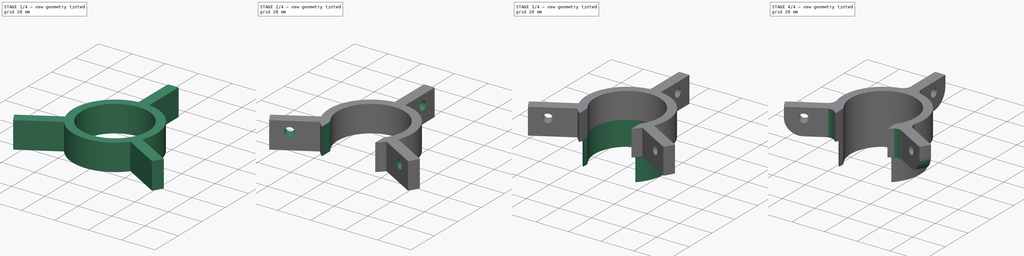
[diagram: build sequence overview — one tinted view per stage of 4, left to right]
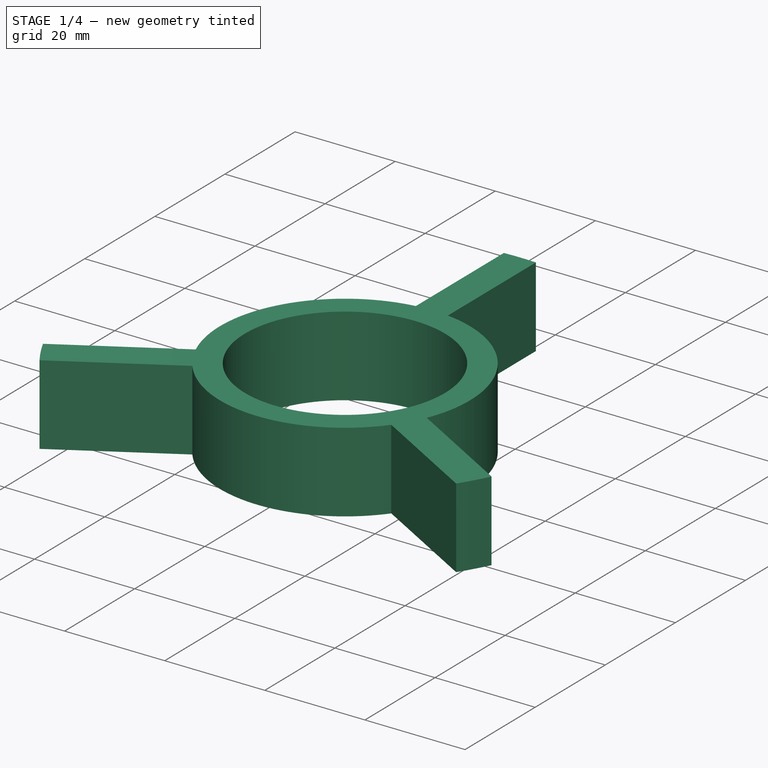
[diagram: stage 1 of 4 — iso view after this stage's code; geometry added in this stage tinted green]
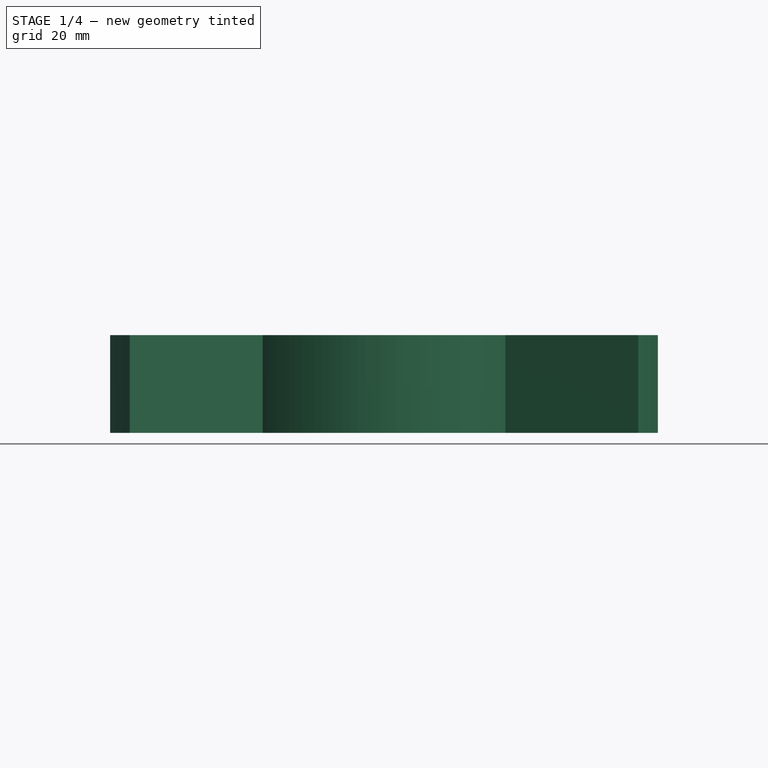
[diagram: stage 1 of 4 — front view after this stage's code; geometry added in this stage tinted green]
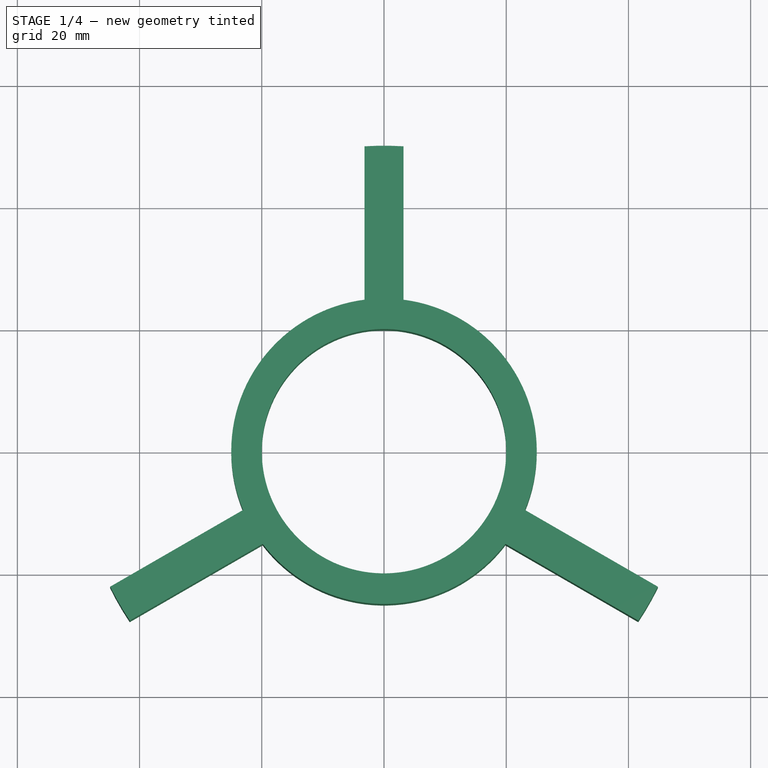
[diagram: stage 1 of 4 — top view after this stage's code; geometry added in this stage tinted green]
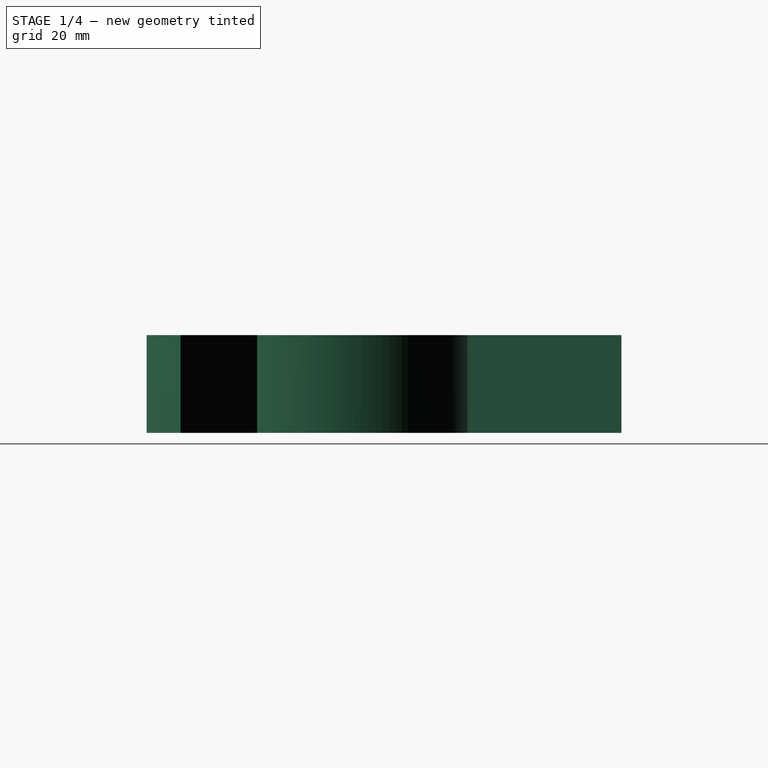
[diagram: stage 1 of 4 — right view after this stage's code; geometry added in this stage tinted green]
FCSTD DOCUMENT  (FreeCAD 0.18R16117 (Git))
Label: lnb_holder_40mm_host_clamp
License: All rights reserved
LicenseURL: http://en.wikipedia.org/wiki/All_rights_reserved
objects: Sketcher::SketchObject×5, PartDesign::Fillet×4, PartDesign::Pocket×3, PartDesign::Pad×2, PartDesign::PolarPattern×2, PartDesign::Body×1, App::Part×1
note: 22 computed .brp shape members not serialized (recipe doc carries the construction recipe); baked Part::Feature solids carry a one-line shape summary decoded from their .brp

FEATURE [Sketcher::SketchObject] Sketch
  MapMode = 5
  Support = -> [XY_Plane001]
  expr: Constraints[3] = Constraints.inner_dia + 60mm
  sketch-geometry (2):
    g0: Circle CenterX=0 CenterY=0 CenterZ=0 NormalX=0 NormalY=0 NormalZ=1 AngleXU=0 Radius=20
    g1: Circle CenterX=0 CenterY=0 CenterZ=0 NormalX=0 NormalY=0 NormalZ=1 AngleXU=0 Radius=50
  constraints (4):
    c: Coincident(g0,g-1)
    c: Coincident(g1,g-1)
    c: Diameter(g0) = 40  'inner_dia'
    c: Diameter(g1) = 100
FEATURE [PartDesign::Pad] Pad
  Length = 16
  Length2 = 100
  Profile = -> Sketch
  Type = 0
FEATURE [Sketcher::SketchObject] Sketch001
  ExternalGeometry = -> [Pad]
  MapMode = 5
  Placement = pos=(0,0,16) rot=(0,0,1;0rad)
  Support = -> [Pad]
  expr: Constraints[9] = Sketch.Constraints.inner_dia / 2 + 5mm
  sketch-geometry (5):
    g0: ArcOfCircle CenterX=0 CenterY=0 CenterZ=0 NormalX=0 NormalY=0 NormalZ=1 AngleXU=0 Radius=25 StartAngle=5.88794 EndAngle=7.72563
    g1: ArcOfCircle CenterX=0 CenterY=0 CenterZ=0 NormalX=0 NormalY=0 NormalZ=1 AngleXU=0 Radius=55.9711 StartAngle=5.81679 EndAngle=7.79678
    g2: LineSegment StartX=3.2 StartY=55.8795 StartZ=0 EndX=3.2 EndY=24.7944 EndZ=0
    g3: LineSegment StartX=23.0725 StartY=-9.6259 StartZ=0 EndX=49.9931 EndY=-25.1685 EndZ=0
    g4: LineSegment [constr] StartX=0 StartY=0 StartZ=0 EndX=53.7237 EndY=-31.0174 EndZ=0
  constraints (13):
    c: Coincident(g0,g-1)
    c: Coincident(g1,g0)
    c: Coincident(g2,g1)
    c: Coincident(g2,g0)
    c: Coincident(g3,g0)
    c: Coincident(g3,g1)
    c: Angle(g3,g2) = 2.0944
    c: Equal(g3,g2)
    c: Vertical(g2)
    c: Distance(g0,g0) = 25
    c: Coincident(g4,g0)
    c: Angle(g4,g-2) = 2.0944
    c: Distance(g1,g4) = 3.2
FEATURE [PartDesign::Pocket] Pocket
  BaseFeature = -> Pad
  Length = 5
  Length2 = 100
  Profile = -> Sketch001
  Type = 1
FEATURE [PartDesign::PolarPattern] PolarPattern
  Angle = 360
  Axis = -> Sketch001 [N_Axis]
  BaseFeature = -> Pocket
  Occurrences = 3
  Originals = -> [Pocket]
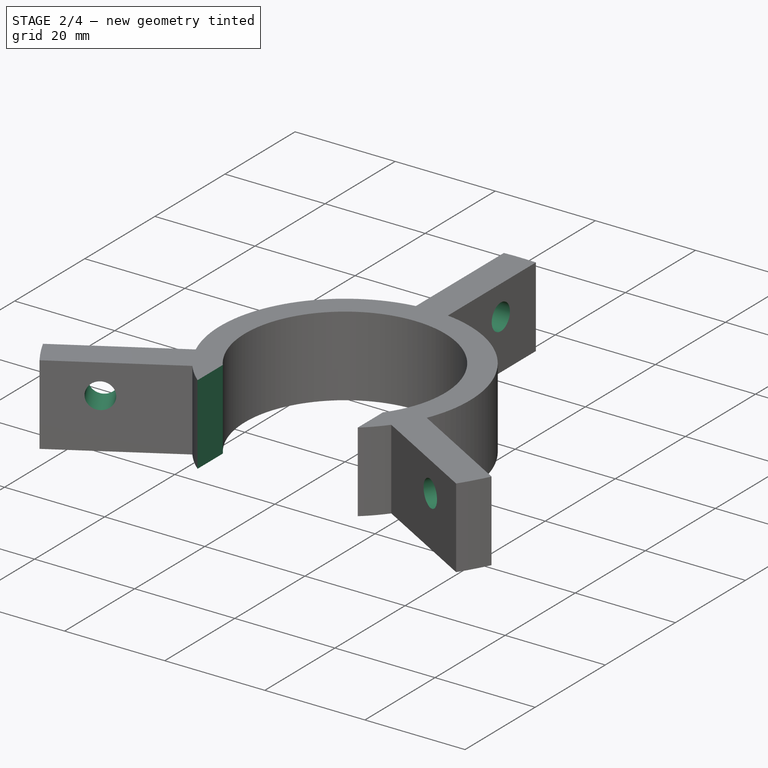
[diagram: stage 2 of 4 — iso view after this stage's code; geometry added in this stage tinted green]
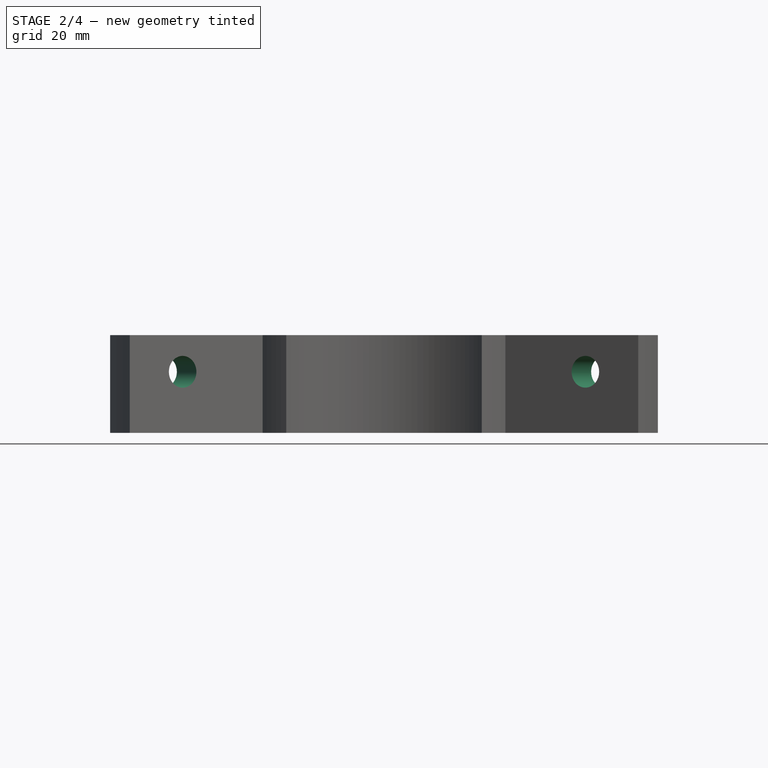
[diagram: stage 2 of 4 — front view after this stage's code; geometry added in this stage tinted green]
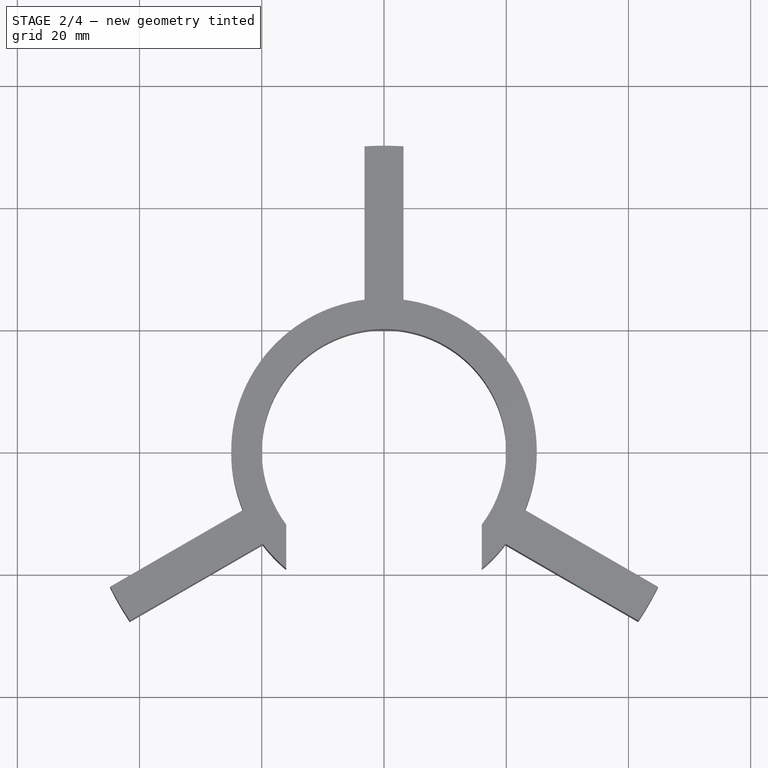
[diagram: stage 2 of 4 — top view after this stage's code; geometry added in this stage tinted green]
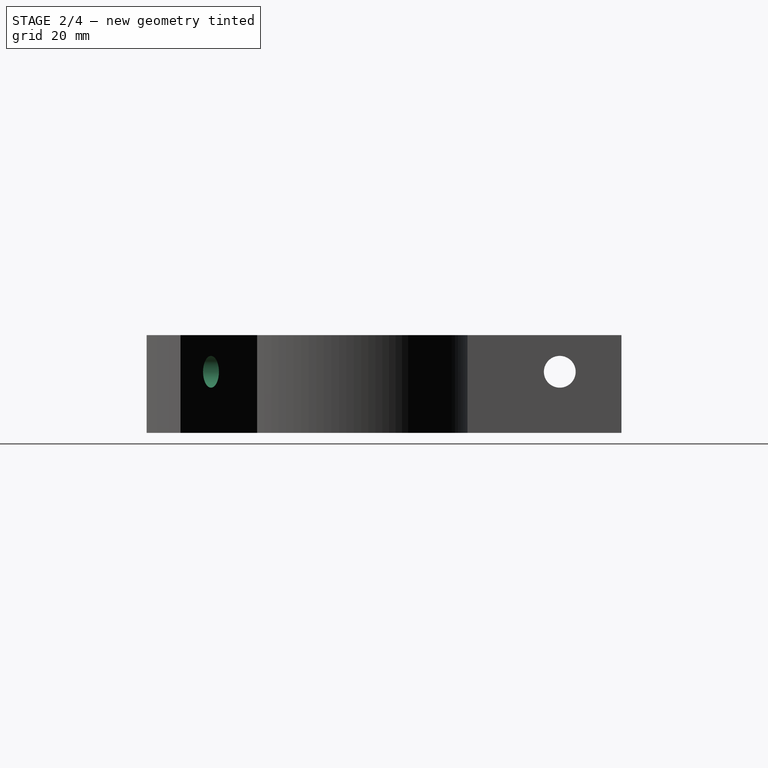
[diagram: stage 2 of 4 — right view after this stage's code; geometry added in this stage tinted green]
FEATURE [Sketcher::SketchObject] Sketch002
  MapMode = 5
  Placement = pos=(0,0,16) rot=(0,0,1;0rad)
  Support = -> [PolarPattern]
  sketch-geometry (5):
    g0: LineSegment StartX=-16 StartY=-8.03614 StartZ=0 EndX=16 EndY=-8.03614 EndZ=0
    g1: LineSegment StartX=16 StartY=-8.03614 StartZ=0 EndX=16 EndY=-34.8485 EndZ=0
    g2: LineSegment StartX=16 StartY=-34.8485 StartZ=0 EndX=-16 EndY=-34.8485 EndZ=0
    g3: LineSegment StartX=-16 StartY=-34.8485 StartZ=0 EndX=-16 EndY=-8.03614 EndZ=0
    g4: GeomPoint X=0 Y=-8.03614 Z=0
  constraints (11):
    c: Coincident(g0,g1)
    c: Coincident(g1,g2)
    c: Coincident(g2,g3)
    c: Coincident(g3,g0)
    c: Horizontal(g0)
    c: Horizontal(g2)
    c: Vertical(g1)
    c: Vertical(g3)
    c: Symmetric(g0,g0,g4)
    c: PointOnObject(g4,g-2)
    c: DistanceX(g2,g2) = 32
FEATURE [PartDesign::Pocket] Pocket001
  BaseFeature = -> PolarPattern
  Length = 5
  Length2 = 100
  Profile = -> Sketch002
  Type = 1
FEATURE [Sketcher::SketchObject] Sketch003
  ExternalGeometry = -> [Pocket001]
  MapMode = 5
  Placement = pos=(3.2,0,0) rot=(0.57735,0.57735,0.57735;2.0944rad)
  Support = -> [Pocket001]
  sketch-geometry (1):
    g0: Circle CenterX=39.8975 CenterY=10 CenterZ=0 NormalX=0 NormalY=0 NormalZ=1 AngleXU=0 Radius=2.6
  constraints (2):
    c: Diameter(g0) = 5.2
    c: DistanceX(g0,g-3) = 10
FEATURE [PartDesign::Pocket] Pocket002
  BaseFeature = -> Pocket001
  Length = 5
  Length2 = 100
  Profile = -> Sketch003
  Type = 1
FEATURE [PartDesign::PolarPattern] PolarPattern001
  Angle = 360
  Axis = -> Z_Axis001
  BaseFeature = -> Pocket002
  Occurrences = 3
  Originals = -> [Pocket002]
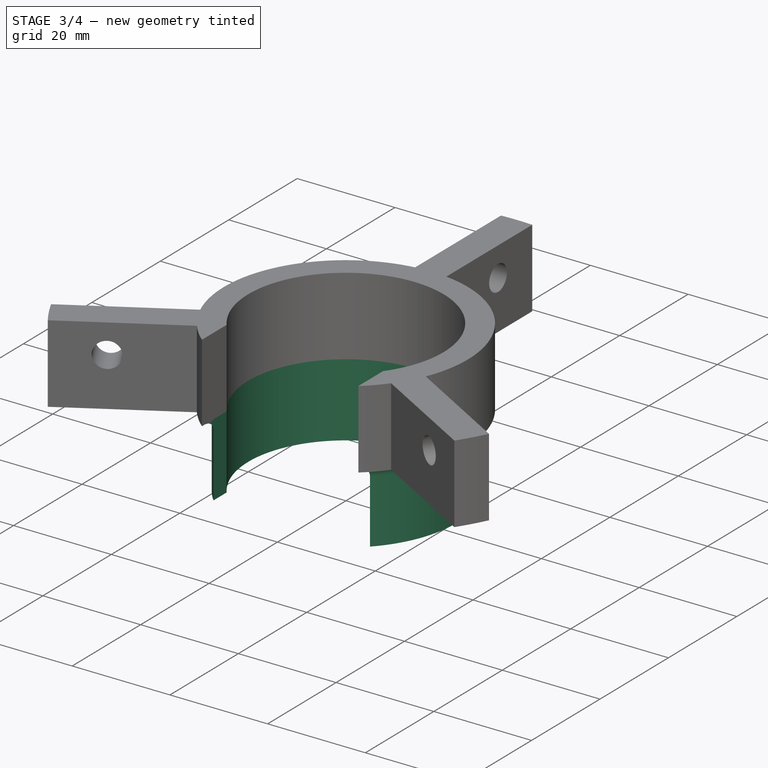
[diagram: stage 3 of 4 — iso view after this stage's code; geometry added in this stage tinted green]
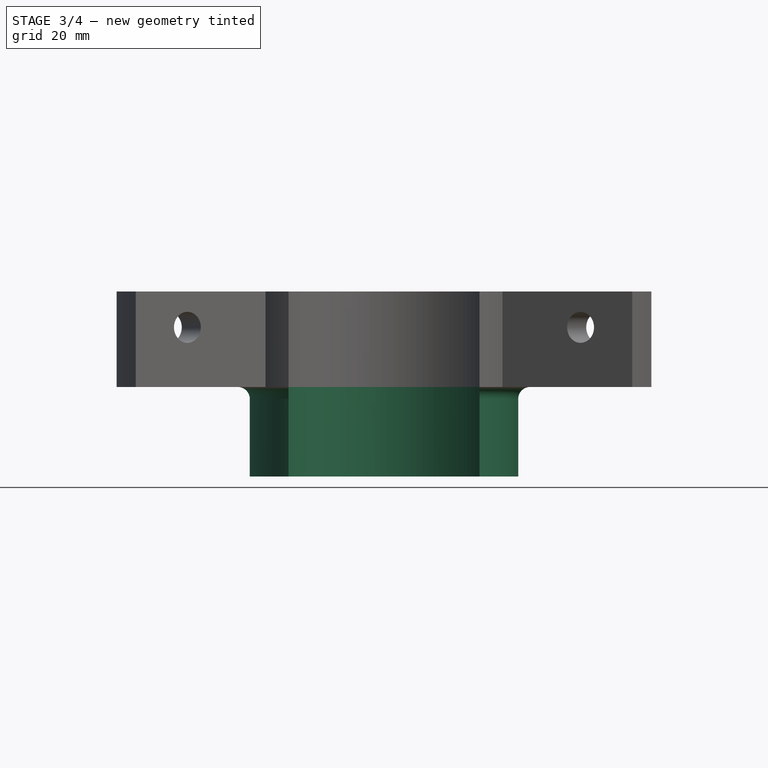
[diagram: stage 3 of 4 — front view after this stage's code; geometry added in this stage tinted green]
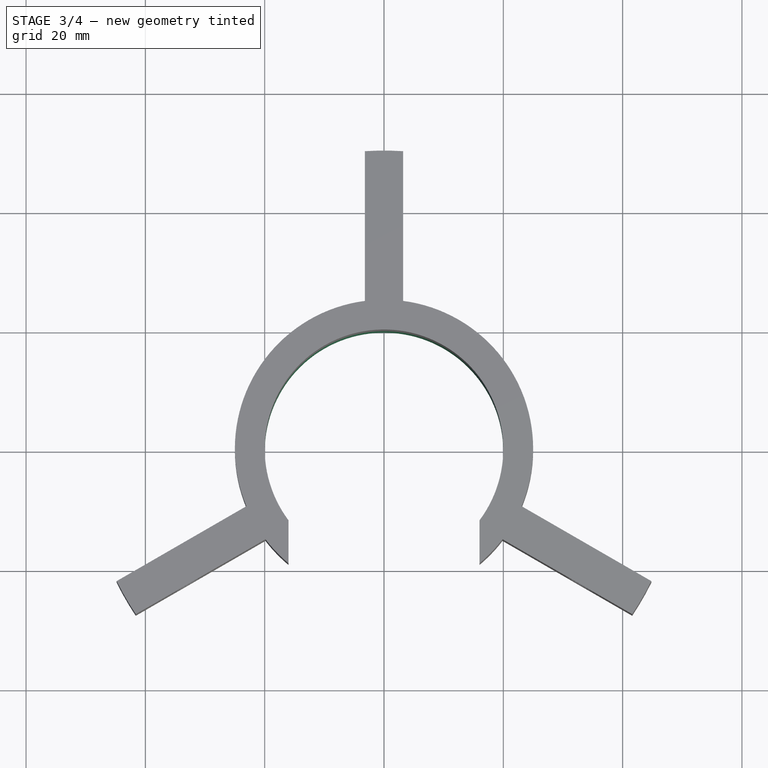
[diagram: stage 3 of 4 — top view after this stage's code; geometry added in this stage tinted green]
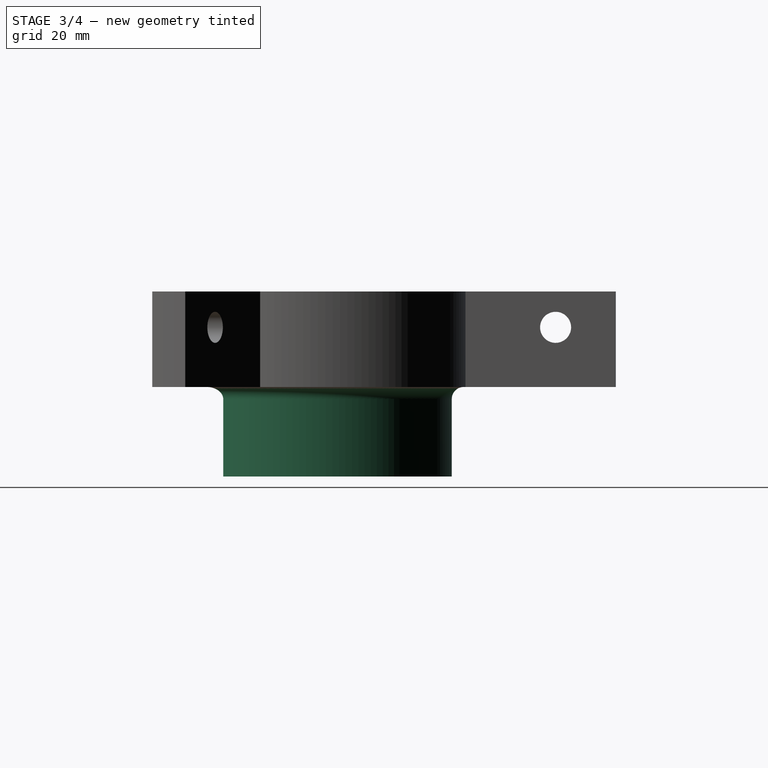
[diagram: stage 3 of 4 — right view after this stage's code; geometry added in this stage tinted green]
FEATURE [Sketcher::SketchObject] Sketch004
  ExternalGeometry = -> [PolarPattern001]
  MapMode = 5
  Placement = pos=(0,0,0) rot=(1,0,0;3.14159rad)
  Support = -> [PolarPattern001]
  sketch-geometry (4):
    g0: ArcOfCircle CenterX=-1.6e-15 CenterY=0 CenterZ=0 NormalX=0 NormalY=0 NormalZ=1 AngleXU=0 Radius=20 StartAngle=2.49809 EndAngle=6.92669
    g1: ArcOfCircle CenterX=-1.6e-15 CenterY=0 CenterZ=0 NormalX=0 NormalY=0 NormalZ=1 AngleXU=0 Radius=22.5 StartAngle=2.36187 EndAngle=7.0629
    g2: LineSegment StartX=16 StartY=15.8193 StartZ=0 EndX=16 EndY=12 EndZ=0
    g3: LineSegment StartX=-16 StartY=15.8193 StartZ=0 EndX=-16 EndY=12 EndZ=0
  constraints (11):
    c: Coincident(g0,g-3)
    c: Coincident(g-4,g0)
    c: Coincident(g0,g-1)
    c: PointOnObject(g1,g-9)
    c: PointOnObject(g1,g-10)
    c: Coincident(g1,g0)
    c: Coincident(g3,g0)
    c: Coincident(g3,g1)
    c: Coincident(g2,g0)
    c: Coincident(g1,g2)
    c: Distance(g1,g0) = 22.5
FEATURE [PartDesign::Pad] Pad001
  BaseFeature = -> PolarPattern001
  Length = 15
  Length2 = 100
  Profile = -> Sketch004
  Type = 0
FEATURE [PartDesign::Fillet] Fillet
  Base = -> Pad001 [Edge12]
  BaseFeature = -> Pad001
  Radius = 2
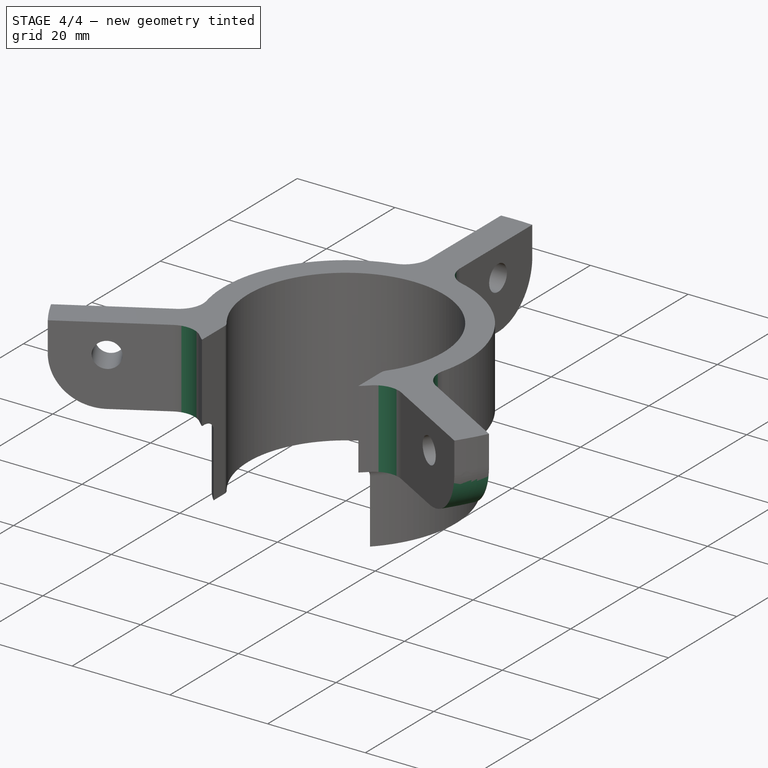
[diagram: stage 4 of 4 — iso view after this stage's code; geometry added in this stage tinted green]
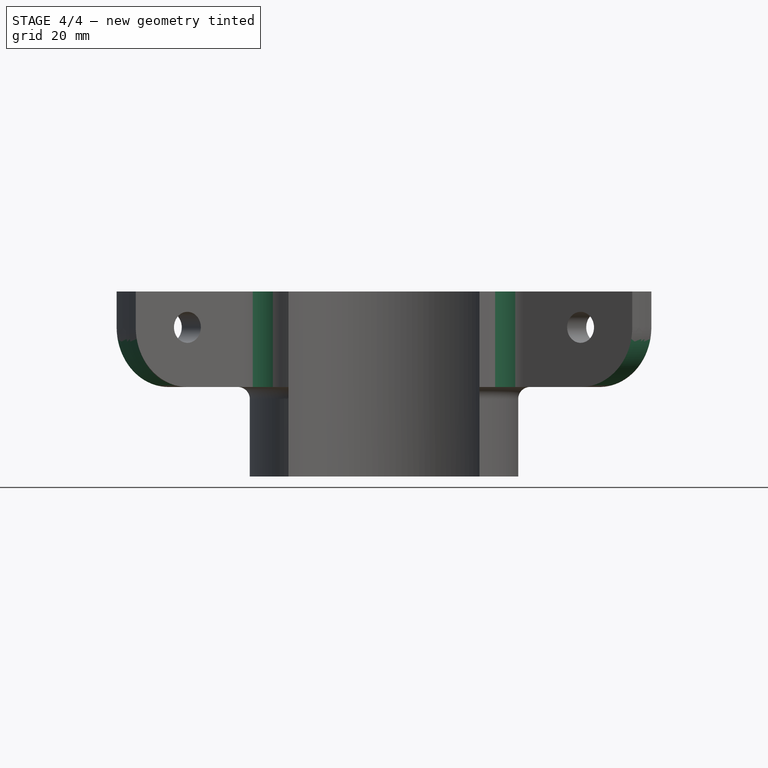
[diagram: stage 4 of 4 — front view after this stage's code; geometry added in this stage tinted green]
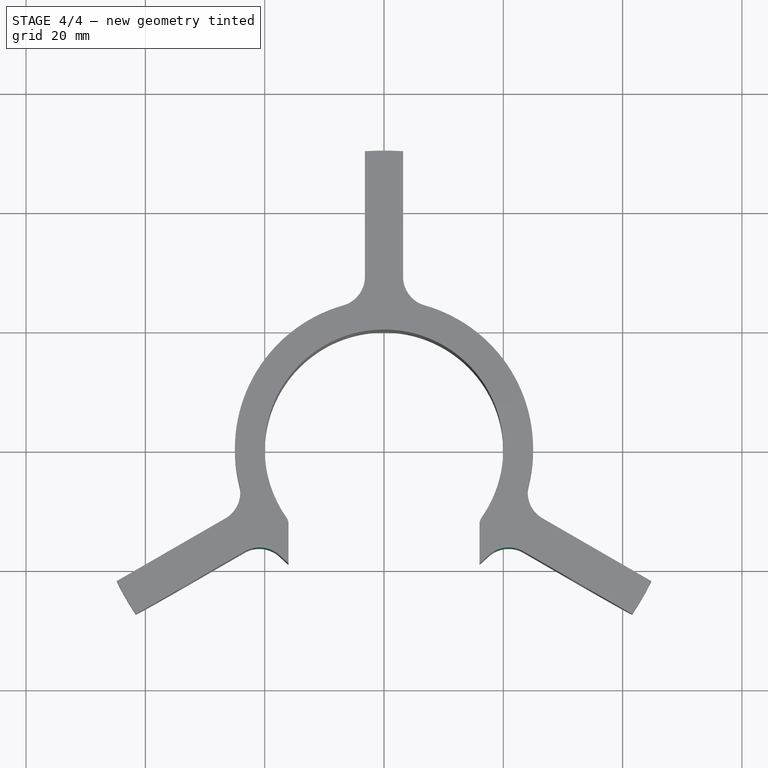
[diagram: stage 4 of 4 — top view after this stage's code; geometry added in this stage tinted green]
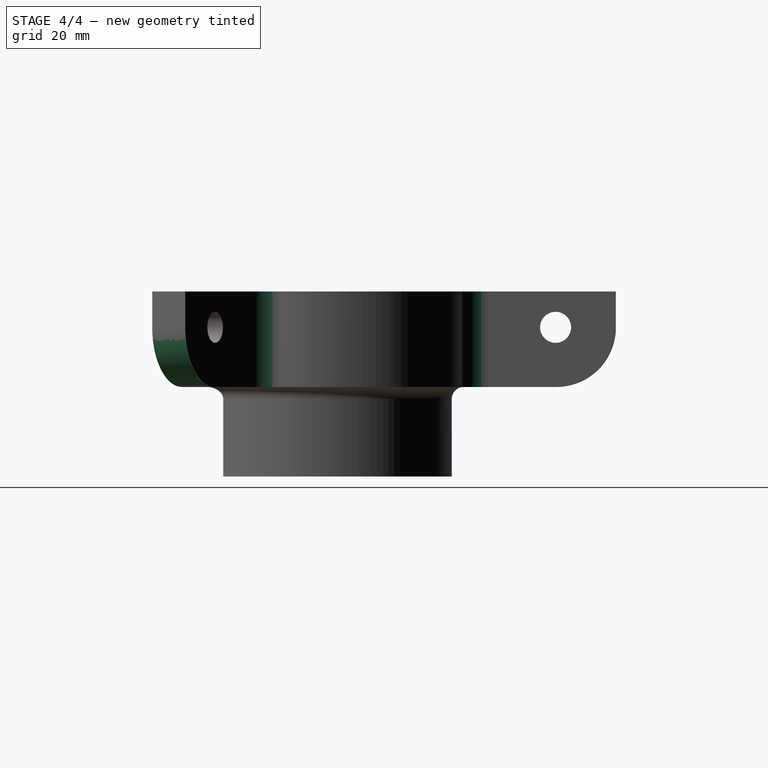
[diagram: stage 4 of 4 — right view after this stage's code; geometry added in this stage tinted green]
FEATURE [PartDesign::Fillet] Fillet001
  Base = -> Fillet [Edge70,Edge31,Edge63,Edge21]
  BaseFeature = -> Fillet
  Radius = 2
FEATURE [PartDesign::Fillet] Fillet002
  Base = -> Fillet001 [Edge39,Edge36,Edge44]
  BaseFeature = -> Fillet001
  Radius = 10
FEATURE [PartDesign::Fillet] Fillet003
  Base = -> Fillet002 [Edge28,Edge20,Edge51,Edge61,Edge54,Edge35]
  BaseFeature = -> Fillet002
  Radius = 5
FEATURE [PartDesign::Body] Body  label="LNBHolder"
  Group = -> [Sketch,Pad,Sketch001,Pocket,PolarPattern,Sketch002,Pocket001,Sketch003,Pocket002,PolarPattern001,Sketch004,Pad001,Fillet,Fillet001,Fillet002,Fillet003]
  Origin = -> Origin001
  Tip = -> Fillet003
FEATURE [App::Part] Part
  Group = -> [Body]
  Origin = -> Origin
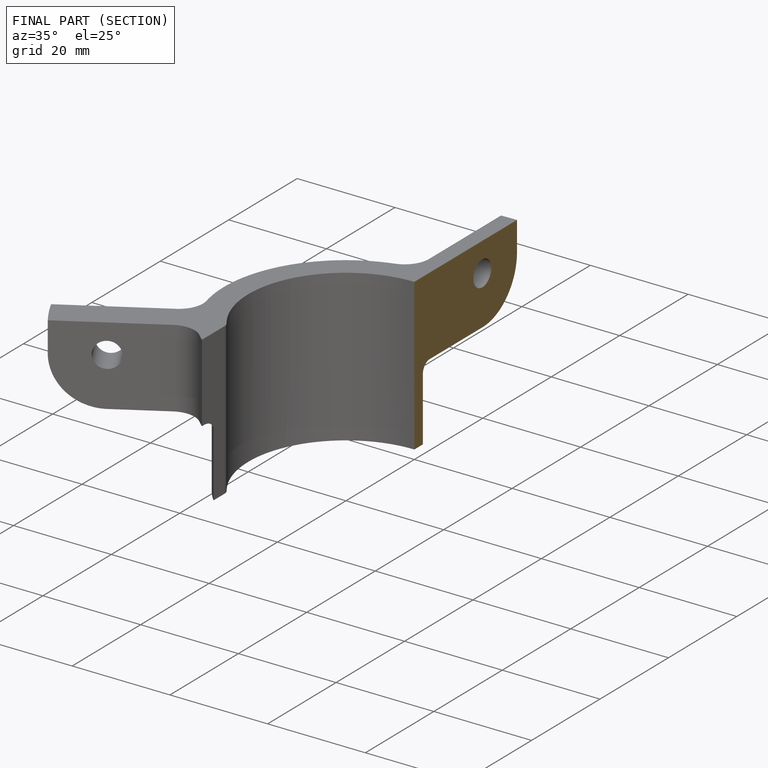
[diagram: finished part — half-section view (interior)]
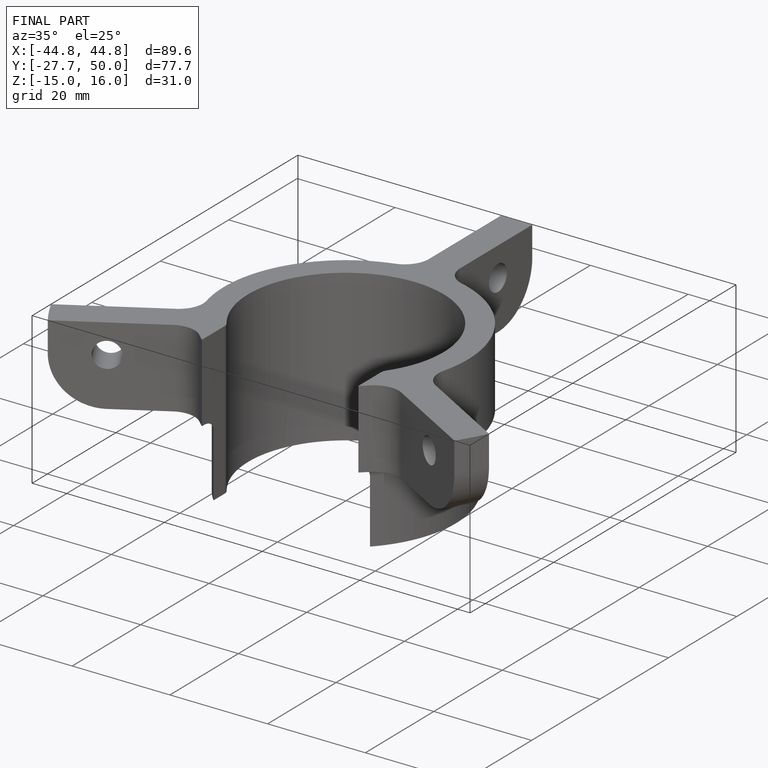
[diagram: finished part — iso view with bounding-box wireframe]
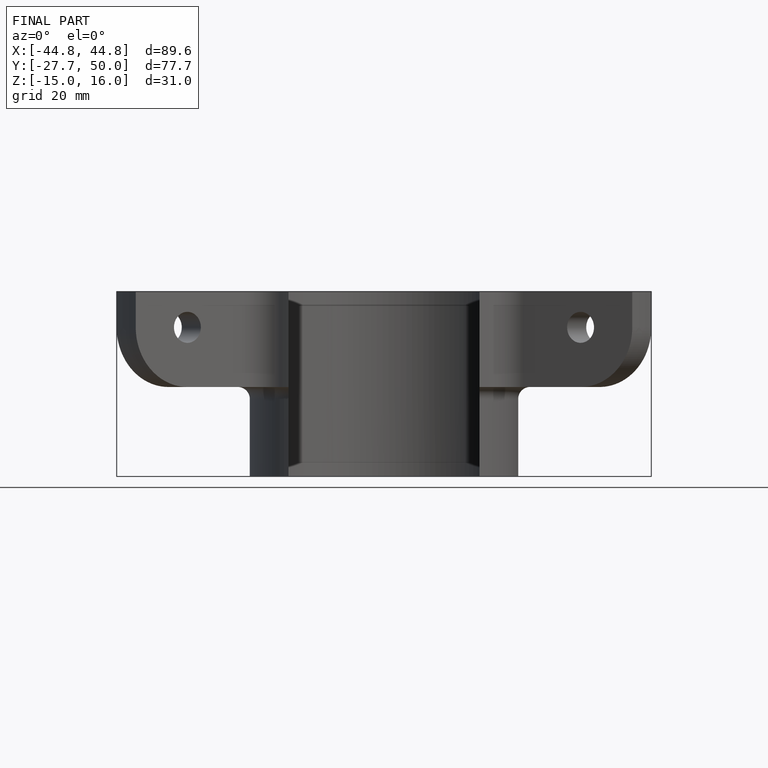
[diagram: finished part — front view with bounding-box wireframe]
